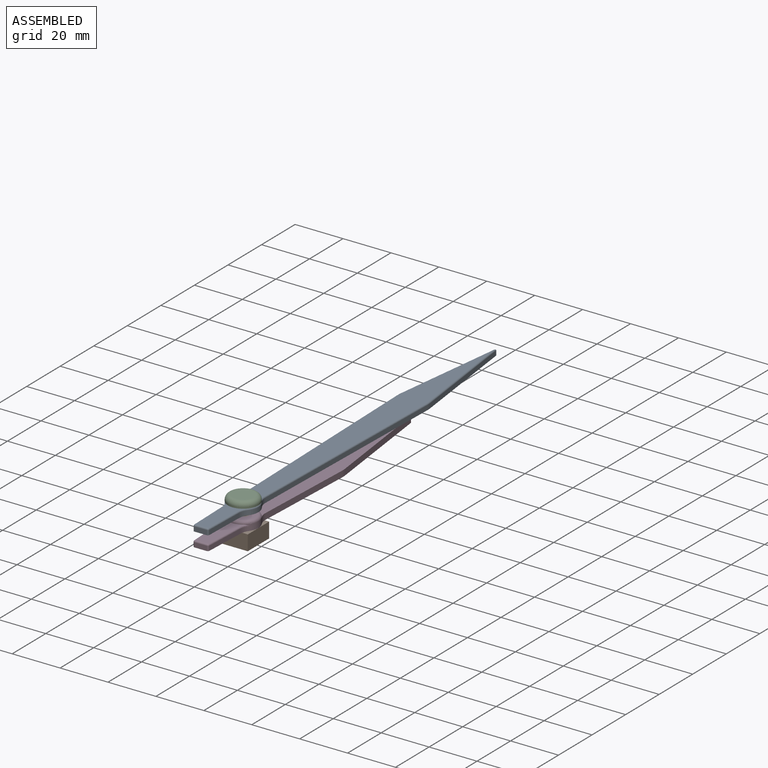
[diagram: assembled view]
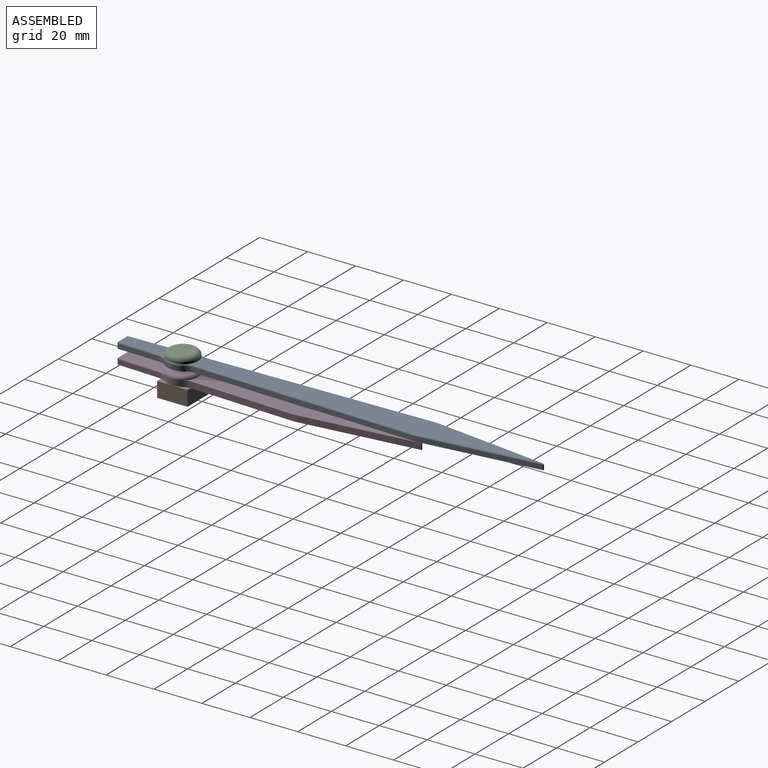
[diagram: assembled view, second angle]
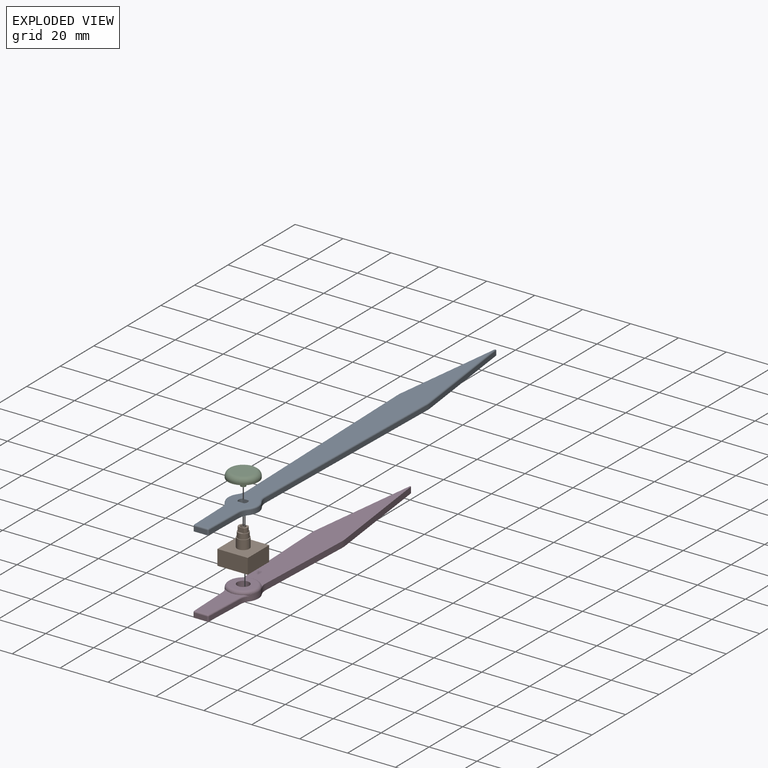
[diagram: exploded view]
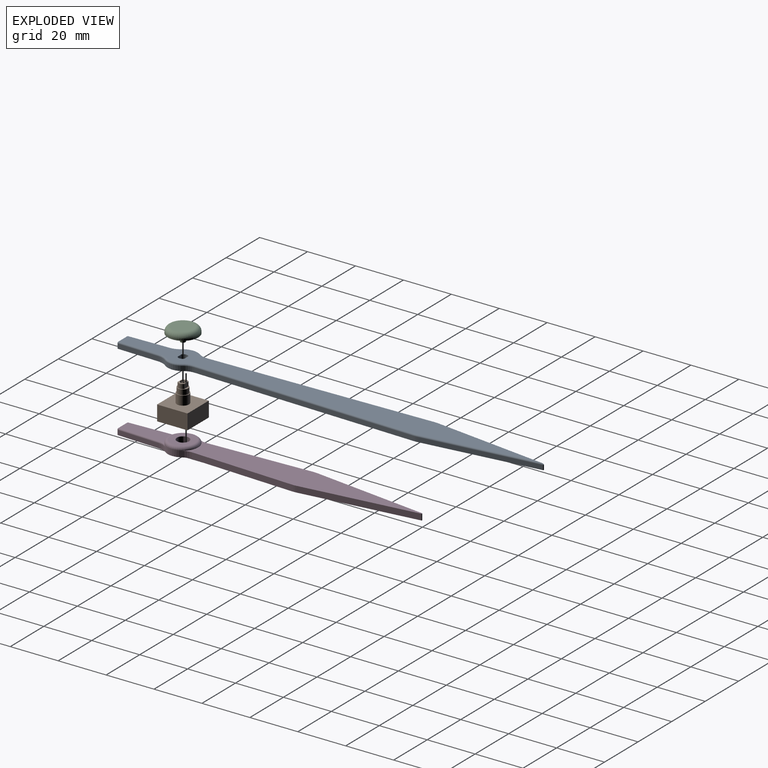
[diagram: exploded view, second angle]
ASSEMBLY  parts=4 mates=3
PART A: 46 faces, bbox 13.8x177.8x3.1 mm
  f0: plane 172.05x11.43mm, normal (0,0,1), area 1333.6mm2, adj f11,f12,f13,f14,f24,f25,f27,f28
  f1: plane 176.01x12.7mm, normal (0,0,-1), area 1557.6mm2, adj f2,f3,f4,f5,f6,f7,f8,f9
  f2: plane 93.13x2.33mm, normal (-1,-0.02,0), area 177.5mm2, adj f1,f15,f21,f27
  f3: cylinder r=6.35mm len=7.62mm, axis (0,0,-1), area 15.6mm2, adj f1,f15,f16,f31
  f4: plane 17.07x1.91mm, normal (-1,-0.02,0), area 32.5mm2, adj f1,f16,f22,f35
  f5: plane 5.11x1.91mm, normal (0,-1,0), area 9.7mm2, adj f1,f22,f23,f39
  f6: plane 17.07x1.91mm, normal (1,-0.02,0), area 32.5mm2, adj f1,f17,f23,f40
  f7: cylinder r=6.35mm len=7.62mm, axis (0,0,-1), area 15.6mm2, adj f1,f17,f18,f36
  f8: plane 93.13x2.33mm, normal (1,-0.02,0), area 177.5mm2, adj f1,f18,f20,f32
  f9: plane 47.84x5.98mm, normal (0.99,0.12,0), area 91.8mm2, adj f1,f19,f20,f28
  f10: plane 47.84x5.98mm, normal (-0.99,0.12,0), area 91.8mm2, adj f1,f19,f21,f24
  f11: plane 2.59x2.29mm, normal (0,-1,0), area 5.9mm2, adj f0,f12,f14,f45
  f12: cylinder r=1.91mm len=2.79mm, axis (0,0,-1), area 7.2mm2, adj f0,f11,f13,f43
  f13: plane 2.59x2.29mm, normal (0,1,0), area 5.9mm2, adj f0,f12,f14,f42
  f14: cylinder r=1.91mm len=2.79mm, axis (0,0,-1), area 7.2mm2, adj f0,f11,f13,f44
  f15: cylinder r=6.35mm len=3.84mm, axis (0,0,-1), area 7.8mm2, adj f1,f2,f3,f29
  f16: cylinder r=6.35mm len=3.78mm, axis (0,0,-1), area 7.8mm2, adj f1,f3,f4,f33
  f17: cylinder r=6.35mm len=3.78mm, axis (0,0,-1), area 7.8mm2, adj f1,f6,f7,f38
  f18: cylinder r=6.35mm len=3.84mm, axis (0,0,-1), area 7.8mm2, adj f1,f7,f8,f34
  f19: cylinder r=0.25mm len=1.91mm, axis (0,0,-1), area 1.4mm2, adj f1,f9,f10,f26
  f20: cylinder r=12.7mm len=1.91mm, axis (0,0,-1), area 3.6mm2, adj f1,f8,f9,f30
  f21: cylinder r=12.7mm len=1.91mm, axis (0,0,-1), area 3.6mm2, adj f1,f2,f10,f25
  f22: cylinder r=0.64mm len=1.91mm, axis (0,0,-1), area 1.9mm2, adj f1,f4,f5,f37
  f23: cylinder r=0.64mm len=1.91mm, axis (0,0,-1), area 1.9mm2, adj f1,f5,f6,f41
  f24: cylinder r=0.64mm len=47.92mm, axis (0.12,0.99,0), area 47mm2, adj f0,f10,f25,f26
  f25: torus R=12.06mm, axis (0,0,1), area 1.9mm2, adj f0,f21,f24,f27
  f26: bspline ~5.12x2.48mm, area 1.1mm2, adj f19,f24,f28
  f27: cylinder r=0.64mm len=93.14mm, axis (-0.02,1,0), area 92.9mm2, adj f0,f2,f25,f29
  f28: cylinder r=0.64mm len=47.92mm, axis (0.12,-0.99,0), area 47mm2, adj f0,f9,f26,f30
  f29: torus R=6.99mm, axis (0,0,1), area 4.2mm2, adj f0,f15,f27,f31
  f30: torus R=12.06mm, axis (0,0,1), area 1.9mm2, adj f0,f20,f28,f32
  f31: torus R=5.71mm, axis (0,0,1), area 7.9mm2, adj f0,f3,f29,f33
  f32: cylinder r=0.64mm len=93.14mm, axis (-0.02,-1,0), area 92.9mm2, adj f0,f8,f30,f34
  f33: torus R=6.99mm, axis (0,0,1), area 4.2mm2, adj f0,f16,f31,f35
  f34: torus R=6.99mm, axis (0,0,1), area 4.2mm2, adj f0,f18,f32,f36
  f35: cylinder r=0.64mm len=17.08mm, axis (-0.02,1,0), area 17mm2, adj f0,f4,f33,f37
  f36: torus R=5.71mm, axis (0,0,1), area 7.9mm2, adj f0,f7,f34,f38
  f37: sphere r=0.64mm, area 0.6mm2, adj f22,f35,f39
  f38: torus R=6.99mm, axis (0,0,1), area 4.2mm2, adj f0,f17,f36,f40
  f39: cylinder r=0.64mm len=5.11mm, axis (-1,0,0), area 5.1mm2, adj f0,f5,f37,f41
  f40: cylinder r=0.64mm len=17.08mm, axis (-0.02,-1,0), area 17mm2, adj f0,f6,f38,f41
  f41: sphere r=0.64mm, area 0.6mm2, adj f23,f39,f40
  f42: plane 2.79x0.26mm, normal (0,0.71,-0.71), area 1mm2, adj f1,f13,f43,f44
  f43: cone r=1.91mm half-angle=45deg, axis (0,0,-1), area 1.2mm2, adj f1,f12,f42,f45
  f44: cone r=1.91mm half-angle=45deg, axis (0,0,-1), area 1.2mm2, adj f1,f14,f42,f45
  f45: plane 2.79x0.26mm, normal (0,-0.71,-0.71), area 1mm2, adj f1,f11,f43,f44
PART B: 19 faces, bbox 12.7x12.7x14.2 mm
  f0: cylinder r=2.54mm len=5.08mm, axis (0,0,-1), area 60.8mm2, adj f1,f14
  f1: plane 5.08x5.08mm, normal (0,0,1), area 4.8mm2, adj f0,f2
  f2: cylinder r=2.22mm len=4.45mm, axis (0,0,-1), area 30.1mm2, adj f1,f3
  f3: plane 4.45x4.45mm, normal (0,0,1), area 5.9mm2, adj f2,f5,f6,f7,f8
  f4: plane 3.81x2.79mm, normal (0,0,1), area 5.9mm2, adj f5,f6,f7,f8,f16
  f5: cylinder r=1.91mm len=2.79mm, axis (0,0,-1), area 6mm2, adj f3,f4,f6,f8
  f6: plane 2.59x1.91mm, normal (0,-1,0), area 4.9mm2, adj f3,f4,f5,f7
  f7: cylinder r=1.91mm len=2.79mm, axis (0,0,-1), area 6mm2, adj f3,f4,f6,f8
  f8: plane 2.59x1.91mm, normal (0,1,0), area 4.9mm2, adj f3,f4,f5,f7
  f9: plane 12.7x6.35mm, normal (0,1,0), area 80.6mm2, adj f10,f12,f13,f14
  f10: plane 12.7x6.35mm, normal (1,0,0), area 80.6mm2, adj f9,f11,f13,f14
  f11: plane 12.7x6.35mm, normal (0,-1,0), area 80.6mm2, adj f10,f12,f13,f14
  f12: plane 12.7x6.35mm, normal (-1,0,0), area 80.6mm2, adj f9,f11,f13,f14
  f13: plane 12.7x12.7mm, normal (0,0,-1), area 161.3mm2, adj f9,f10,f11,f12
  f14: plane 12.7x12.7mm, normal (0,0,1), area 141mm2, adj f0,f9,f10,f11,f12
  f15: cylinder r=0.51mm len=2.54mm, axis (0,0,1), area 8.1mm2, adj f17,f18
  f16: cylinder r=1.08mm len=2.54mm, axis (0,0,1), area 17.2mm2, adj f4,f17
  f17: plane 2.16x2.16mm, normal (0,0,1), area 2.9mm2, adj f15,f16
  f18: plane 1.02x1.02mm, normal (0,0,1), area 0.8mm2, adj f15
PART C: 13 faces, bbox 13.7x13.7x5.7 mm
  f0: cylinder r=0.51mm len=2.54mm, axis (0,0,-1), area 8.1mm2, adj f2,f8
  f1: cylinder r=1.08mm len=2.54mm, axis (0,0,-1), area 17.2mm2, adj f2,f3
  f2: plane 2.16x2.16mm, normal (0,0,-1), area 2.9mm2, adj f0,f1
  f3: plane 3.81x2.79mm, normal (0,0,-1), area 5.9mm2, adj f1,f4,f5,f6,f7
  f4: cylinder r=1.91mm len=2.79mm, axis (0,0,-1), area 2mm2, adj f3,f5,f7,f9
  f5: plane 2.59x0.64mm, normal (0,-1,0), area 1.6mm2, adj f3,f4,f6,f9
  f6: cylinder r=1.91mm len=2.79mm, axis (0,0,-1), area 2mm2, adj f3,f5,f7,f9
  f7: plane 2.59x0.64mm, normal (0,1,0), area 1.6mm2, adj f3,f4,f6,f9
  f8: plane 1.02x1.02mm, normal (0,0,-1), area 0.8mm2, adj f0
  f9: plane 12.7x12.7mm, normal (0,0,-1), area 117.1mm2, adj f4,f5,f6,f7,f10
  f10: cylinder r=6.35mm len=12.7mm, axis (0,0,-1), area 25.3mm2, adj f9,f12
  f11: plane 8.89x8.89mm, normal (0,0,1), area 62.1mm2, adj f12
  f12: torus R=4.45mm, axis (0,0,1), area 106.4mm2, adj f10,f11
PART D: 32 faces, bbox 13.7x125.2x3.8 mm
  f0: cylinder r=6.35mm len=8.47mm, axis (0,0,-1), area 19.6mm2, adj f11,f16,f17,f24,f31
  f1: plane 96.52x12.63mm, normal (0,0,1), area 810.4mm2, adj f3,f4,f5,f6,f15,f16,f18,f19
  f2: plane 17.6x1.91mm, normal (1,-0.04,0), area 33.5mm2, adj f11,f14,f22,f29
  f3: plane 42.9x2.54mm, normal (1,-0.04,0), area 109.1mm2, adj f1,f11,f15,f19
  f4: plane 47.74x5.97mm, normal (0.99,0.12,0), area 122.2mm2, adj f1,f11,f18,f19
  f5: plane 47.74x5.97mm, normal (-0.99,0.12,0), area 122.2mm2, adj f1,f11,f18,f20
  f6: plane 42.9x2.54mm, normal (-1,-0.04,0), area 109.1mm2, adj f1,f11,f16,f20
  f7: cylinder r=6.35mm len=8.47mm, axis (0,0,-1), area 19.6mm2, adj f11,f14,f15,f30,f31
  f8: plane 17.6x1.91mm, normal (-1,-0.04,0), area 33.5mm2, adj f11,f17,f21,f25
  f9: plane 5.13x1.91mm, normal (0,-1,0), area 9.8mm2, adj f11,f21,f22,f27
  f10: plane 19.59x7.35mm, normal (0,0,1), area 111mm2, adj f24,f25,f27,f29,f30,f31
  f11: plane 125.21x12.7mm, normal (0,0,-1), area 1053mm2, adj f0,f2,f3,f4,f5,f6,f7,f8
  f12: cylinder r=2.54mm len=5.08mm, axis (0,0,-1), area 56.8mm2, adj f13,f23
  f13: plane 10.16x10.16mm, normal (0,0,1), area 60.8mm2, adj f12,f31
  f14: cylinder r=6.35mm len=3.47mm, axis (0,0,-1), area 7.1mm2, adj f2,f7,f11,f30
  f15: cylinder r=6.35mm len=3.55mm, axis (0,0,-1), area 9.5mm2, adj f1,f3,f7,f11
  f16: cylinder r=6.35mm len=3.55mm, axis (0,0,-1), area 9.5mm2, adj f0,f1,f6,f11
  f17: cylinder r=6.35mm len=3.47mm, axis (0,0,-1), area 7.1mm2, adj f0,f8,f11,f24
  f18: cylinder r=0.25mm len=2.54mm, axis (0,0,-1), area 1.9mm2, adj f1,f4,f5,f11
  f19: cylinder r=12.7mm len=2.54mm, axis (0,0,-1), area 5.4mm2, adj f1,f3,f4,f11
  f20: cylinder r=12.7mm len=2.54mm, axis (0,0,-1), area 5.4mm2, adj f1,f5,f6,f11
  f21: cylinder r=0.64mm len=1.91mm, axis (0,0,-1), area 1.8mm2, adj f8,f9,f11,f26
  f22: cylinder r=0.64mm len=1.91mm, axis (0,0,-1), area 1.8mm2, adj f2,f9,f11,f28
  f23: cone r=2.54mm half-angle=45deg, axis (0,0,-1), area 6mm2, adj f11,f12
  f24: torus R=6.99mm, axis (0,0,1), area 2.9mm2, adj f0,f10,f17,f25
  f25: cylinder r=0.64mm len=17.62mm, axis (-0.04,1,0), area 17.6mm2, adj f8,f10,f24,f26
  f26: sphere r=0.64mm, area 0.6mm2, adj f21,f25,f27
  f27: cylinder r=0.64mm len=5.13mm, axis (-1,0,0), area 5.1mm2, adj f9,f10,f26,f28
  f28: sphere r=0.64mm, area 0.6mm2, adj f22,f27,f29
  f29: cylinder r=0.64mm len=17.62mm, axis (-0.04,-1,0), area 17.6mm2, adj f2,f10,f28,f30
  f30: torus R=6.99mm, axis (0,0,1), area 2.9mm2, adj f7,f10,f14,f29
  f31: torus R=5.08mm, axis (0,0,1), area 73.8mm2, adj f0,f1,f7,f10,f13
PLACE A t=(0.26,0.24,8.37)mm
PLACE B t=(0.26,0.24,2.4)mm
PLACE C t=(0.26,0.24,7.73)mm
PLACE D t=(0.26,0.24,2.4)mm
MATE fastened D.f0 <-> B.f0  axis (0,0,-1) through (0.26,0.24,2.4)mm
MATE fastened C.f4 <-> A.f14  axis (0,0,-1) through (0.26,0.24,10.91)mm
MATE fastened B.f5 <-> A.f14  axis (0,0,-1) through (0.26,0.24,8.37)mm
